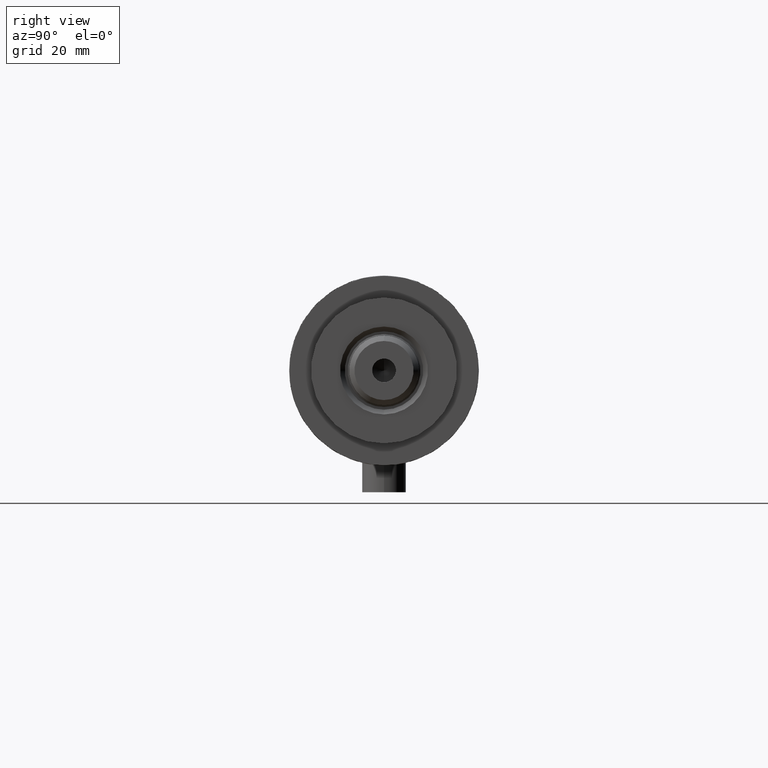
[diagram: clean part render]
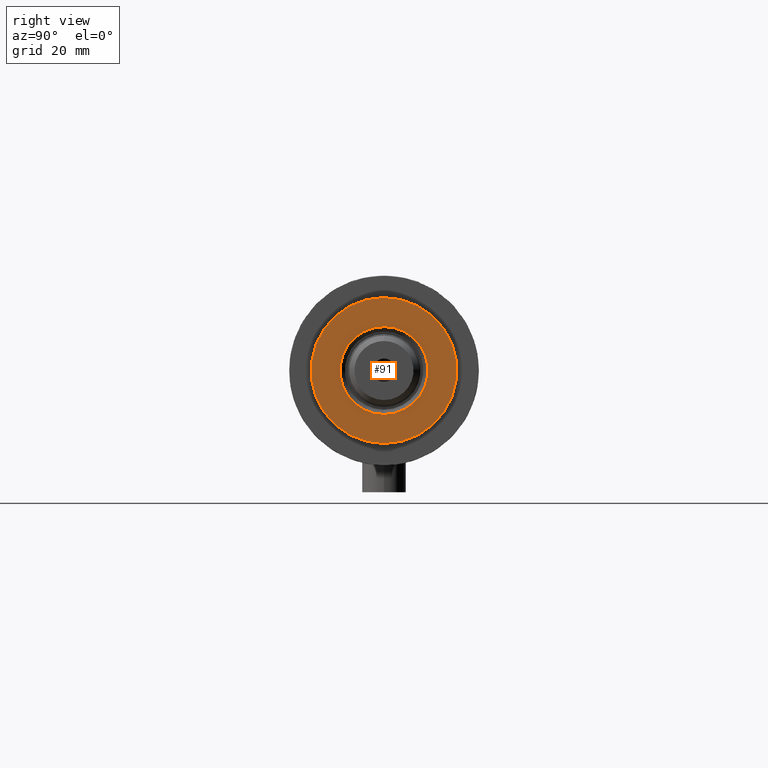
[diagram: same view with one face highlighted and labeled with its STEP entity id]
A machine part, right view. The second image highlights one B-rep face of the part: STEP entity #91.
In plain terms, the highlighted planar face has unit normal (1, 0, -0).
Its self-contained STEP definition (entity closure, byte-faithful):
#74 = CARTESIAN_POINT ( 'NONE',  ( 0.000000000000000000, 0.000000000000000000, 33.50000000000000000 ) ) ;
#91 = ADVANCED_FACE ( 'NONE', ( #2721, #106 ), #4624, .T. ) ;
#106 = FACE_OUTER_BOUND ( 'NONE', #2828, .T. ) ;
#260 = CARTESIAN_POINT ( 'NONE',  ( -19.99999999999999645, 0.000000000000000000, 33.50000000000000000 ) ) ;
#280 = AXIS2_PLACEMENT_3D ( 'NONE', #2725, #1144, #3441 ) ;
#381 = DIRECTION ( 'NONE',  ( -0.000000000000000000, -0.000000000000000000, -1.000000000000000000 ) ) ;
#504 = AXIS2_PLACEMENT_3D ( 'NONE', #1265, #894, #2768 ) ;
#595 = EDGE_LOOP ( 'NONE', ( #1638, #2775 ) ) ;
#784 = DIRECTION ( 'NONE',  ( 1.000000000000000000, 0.000000000000000000, 0.000000000000000000 ) ) ;
#894 = DIRECTION ( 'NONE',  ( -0.000000000000000000, -0.000000000000000000, -1.000000000000000000 ) ) ;
#931 = DIRECTION ( 'NONE',  ( 0.000000000000000000, 0.000000000000000000, 1.000000000000000000 ) ) ;
#953 = VERTEX_POINT ( 'NONE', #3338 ) ;
#1134 = CIRCLE ( 'NONE', #280, 19.99999999999999645 ) ;
#1144 = DIRECTION ( 'NONE',  ( 0.000000000000000000, 0.000000000000000000, 1.000000000000000000 ) ) ;
#1265 = CARTESIAN_POINT ( 'NONE',  ( 0.000000000000000000, 0.000000000000000000, 33.50000000000000000 ) ) ;
#1295 = CIRCLE ( 'NONE', #1690, 19.99999999999999645 ) ;
#1321 = DIRECTION ( 'NONE',  ( 1.000000000000000000, 0.000000000000000000, -0.000000000000000000 ) ) ;
#1328 = EDGE_CURVE ( 'NONE', #953, #3893, #3347, .T. ) ;
#1335 = DIRECTION ( 'NONE',  ( 1.000000000000000000, 0.000000000000000000, 0.000000000000000000 ) ) ;
#1638 = ORIENTED_EDGE ( 'NONE', *, *, #1328, .T. ) ;
#1690 = AXIS2_PLACEMENT_3D ( 'NONE', #3144, #2074, #1335 ) ;
#1994 = CIRCLE ( 'NONE', #504, 12.05000000000000426 ) ;
#2018 = EDGE_CURVE ( 'NONE', #3893, #953, #1994, .T. ) ;
#2055 = VERTEX_POINT ( 'NONE', #260 ) ;
#2074 = DIRECTION ( 'NONE',  ( 0.000000000000000000, 0.000000000000000000, 1.000000000000000000 ) ) ;
#2506 = CARTESIAN_POINT ( 'NONE',  ( 19.99999999999999645, 2.449293598294706119E-15, 33.50000000000000000 ) ) ;
#2721 = FACE_BOUND ( 'NONE', #595, .T. ) ;
#2725 = CARTESIAN_POINT ( 'NONE',  ( 0.000000000000000000, 0.000000000000000000, 33.50000000000000000 ) ) ;
#2768 = DIRECTION ( 'NONE',  ( 1.000000000000000000, 0.000000000000000000, 0.000000000000000000 ) ) ;
#2775 = ORIENTED_EDGE ( 'NONE', *, *, #2018, .T. ) ;
#2782 = ORIENTED_EDGE ( 'NONE', *, *, #3850, .T. ) ;
#2828 = EDGE_LOOP ( 'NONE', ( #2782, #3215 ) ) ;
#3083 = AXIS2_PLACEMENT_3D ( 'NONE', #3942, #931, #1321 ) ;
#3116 = CARTESIAN_POINT ( 'NONE',  ( -12.05000000000000426, 1.475699392972560823E-15, 33.50000000000000000 ) ) ;
#3144 = CARTESIAN_POINT ( 'NONE',  ( 0.000000000000000000, 0.000000000000000000, 33.50000000000000000 ) ) ;
#3187 = AXIS2_PLACEMENT_3D ( 'NONE', #74, #381, #784 ) ;
#3215 = ORIENTED_EDGE ( 'NONE', *, *, #4143, .T. ) ;
#3338 = CARTESIAN_POINT ( 'NONE',  ( 12.05000000000000426, 0.000000000000000000, 33.50000000000000000 ) ) ;
#3347 = CIRCLE ( 'NONE', #3187, 12.05000000000000426 ) ;
#3441 = DIRECTION ( 'NONE',  ( 1.000000000000000000, 0.000000000000000000, 0.000000000000000000 ) ) ;
#3850 = EDGE_CURVE ( 'NONE', #2055, #4463, #1134, .T. ) ;
#3893 = VERTEX_POINT ( 'NONE', #3116 ) ;
#3942 = CARTESIAN_POINT ( 'NONE',  ( 0.000000000000000000, 0.000000000000000000, 33.50000000000000000 ) ) ;
#4143 = EDGE_CURVE ( 'NONE', #4463, #2055, #1295, .T. ) ;
#4463 = VERTEX_POINT ( 'NONE', #2506 ) ;
#4624 = PLANE ( 'NONE',  #3083 ) ;